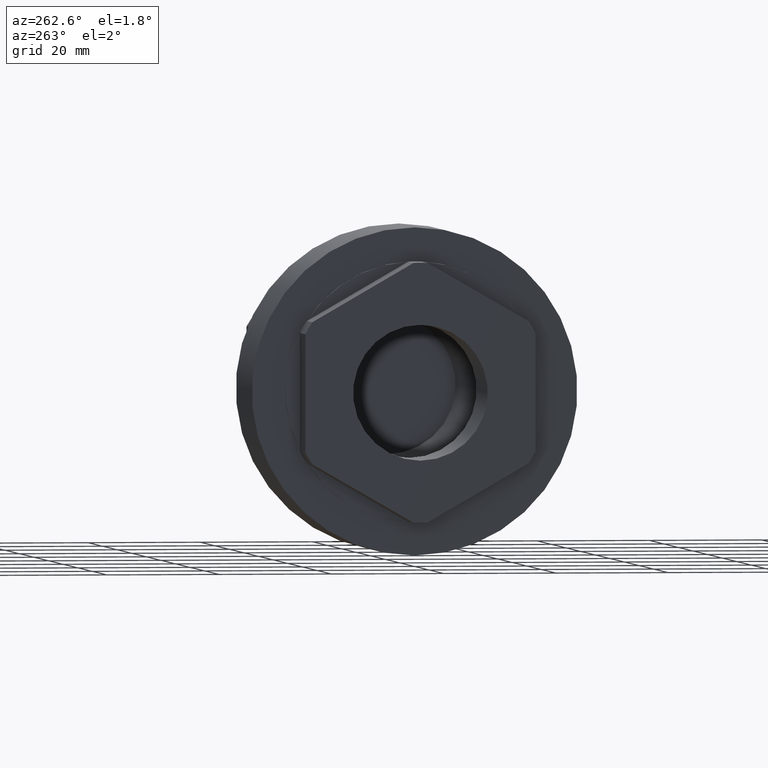
[diagram: clean part render]
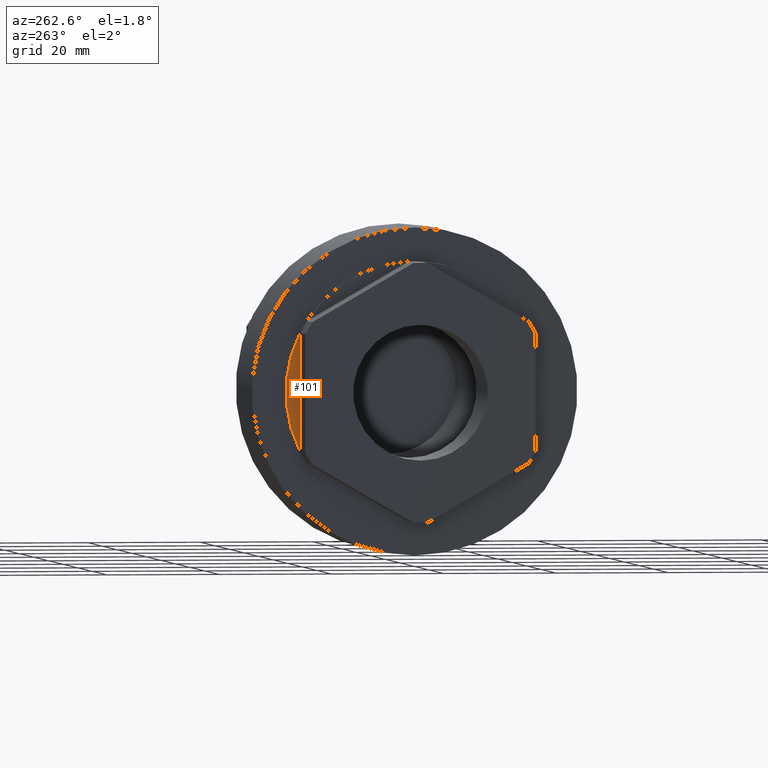
[diagram: same view with one face highlighted and labeled with its STEP entity id]
A machine part, auxiliary view. The second image highlights one B-rep face of the part: STEP entity #101.
In plain terms, the highlighted planar face has unit normal (-1, 0, 0).
Its self-contained STEP definition (entity closure, byte-faithful):
#101 = ADVANCED_FACE( '', ( #208 ), #209, .T. );
#208 = FACE_OUTER_BOUND( '', #307, .T. );
#209 = PLANE( '', #308 );
#307 = EDGE_LOOP( '', ( #515, #516 ) );
#308 = AXIS2_PLACEMENT_3D( '', #517, #518, #519 );
#515 = ORIENTED_EDGE( '', *, *, #599, .T. );
#516 = ORIENTED_EDGE( '', *, *, #574, .T. );
#517 = CARTESIAN_POINT( '', ( -0.500000000000007, 5.12500000000000, -8.87676038879050 ) );
#518 = DIRECTION( '', ( -1.00000000000000, 0.000000000000000, 0.000000000000000 ) );
#519 = DIRECTION( '', ( 0.000000000000000, 0.000000000000000, 1.00000000000000 ) );
#574 = EDGE_CURVE( '', #686, #684, #687, .T. );
#599 = EDGE_CURVE( '', #684, #686, #715, .T. );
#684 = VERTEX_POINT( '', #817 );
#686 = VERTEX_POINT( '', #820 );
#687 = LINE( '', #821, #822 );
#715 = CIRCLE( '', #860, 23.0000000000000 );
#817 = CARTESIAN_POINT( '', ( -0.500000000000007, 20.5000000000000, 10.4283268073071 ) );
#820 = CARTESIAN_POINT( '', ( -0.500000000000007, 20.5000000000000, -10.4283268073070 ) );
#821 = CARTESIAN_POINT( '', ( -0.500000000000007, 20.5000000000000, -10.4283268073071 ) );
#822 = VECTOR( '', #940, 1000.00000000000 );
#860 = AXIS2_PLACEMENT_3D( '', #960, #961, #962 );
#940 = DIRECTION( '', ( 0.000000000000000, 0.000000000000000, 1.00000000000000 ) );
#960 = CARTESIAN_POINT( '', ( -0.500000000000007, 0.000000000000000, 0.000000000000000 ) );
#961 = DIRECTION( '', ( -1.00000000000000, 0.000000000000000, 0.000000000000000 ) );
#962 = DIRECTION( '', ( 0.000000000000000, 0.000000000000000, 1.00000000000000 ) );